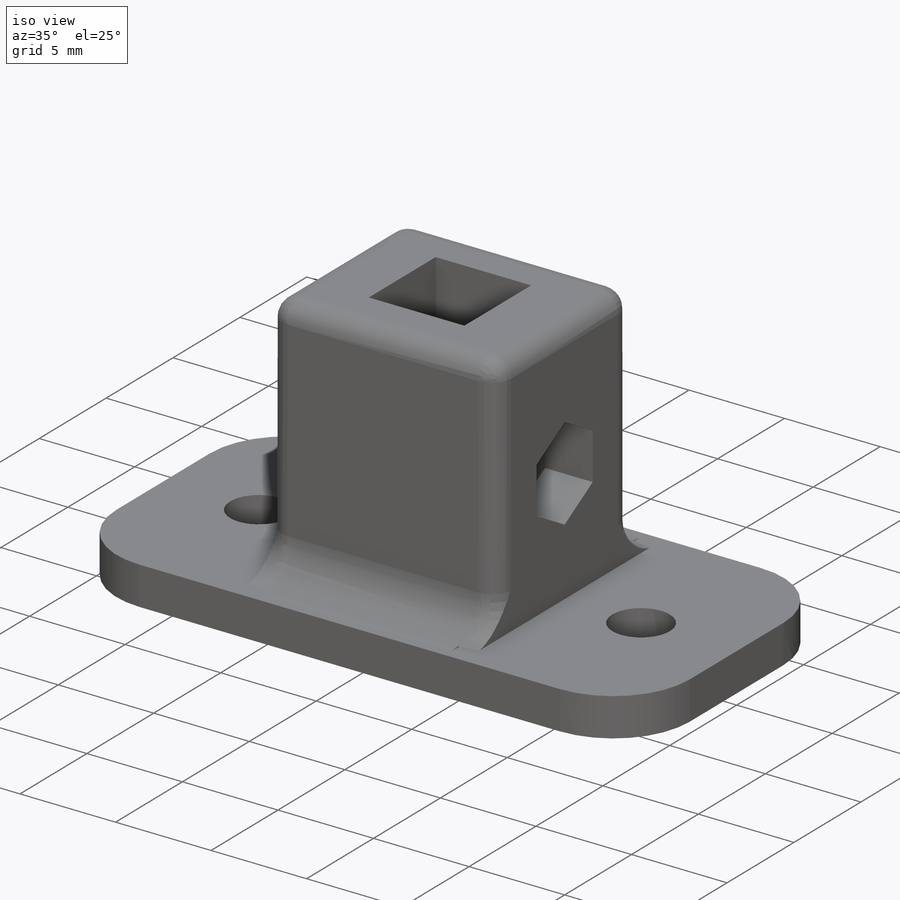
[diagram: iso view]
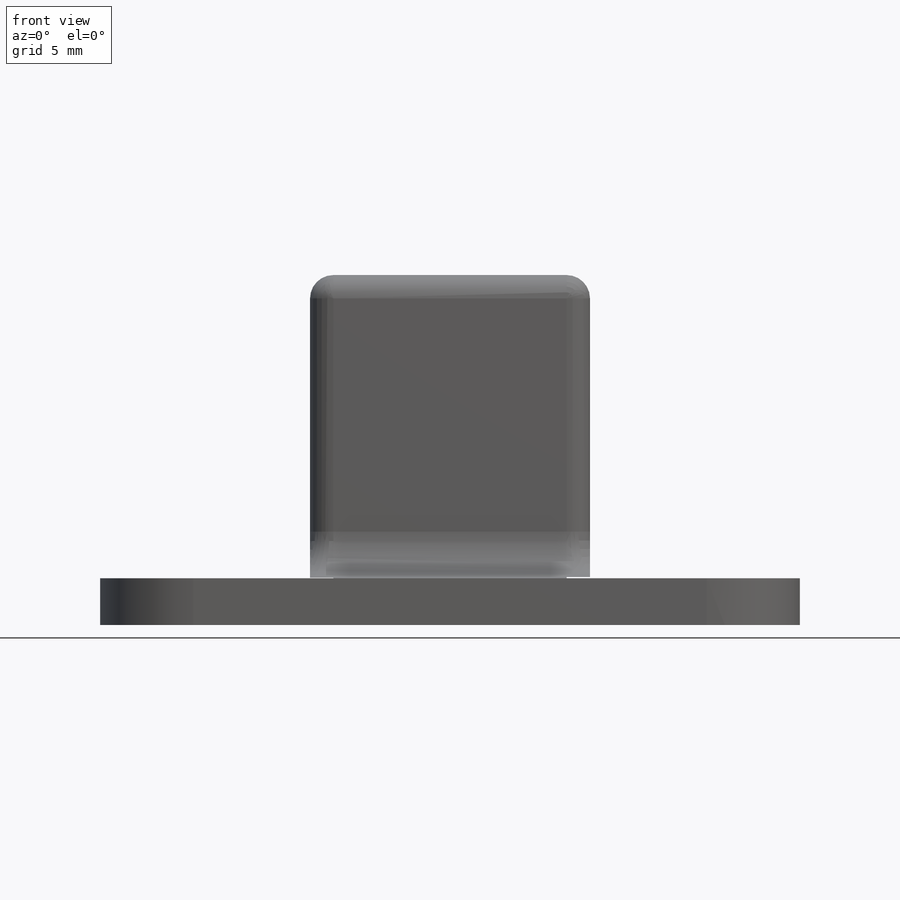
[diagram: front view]
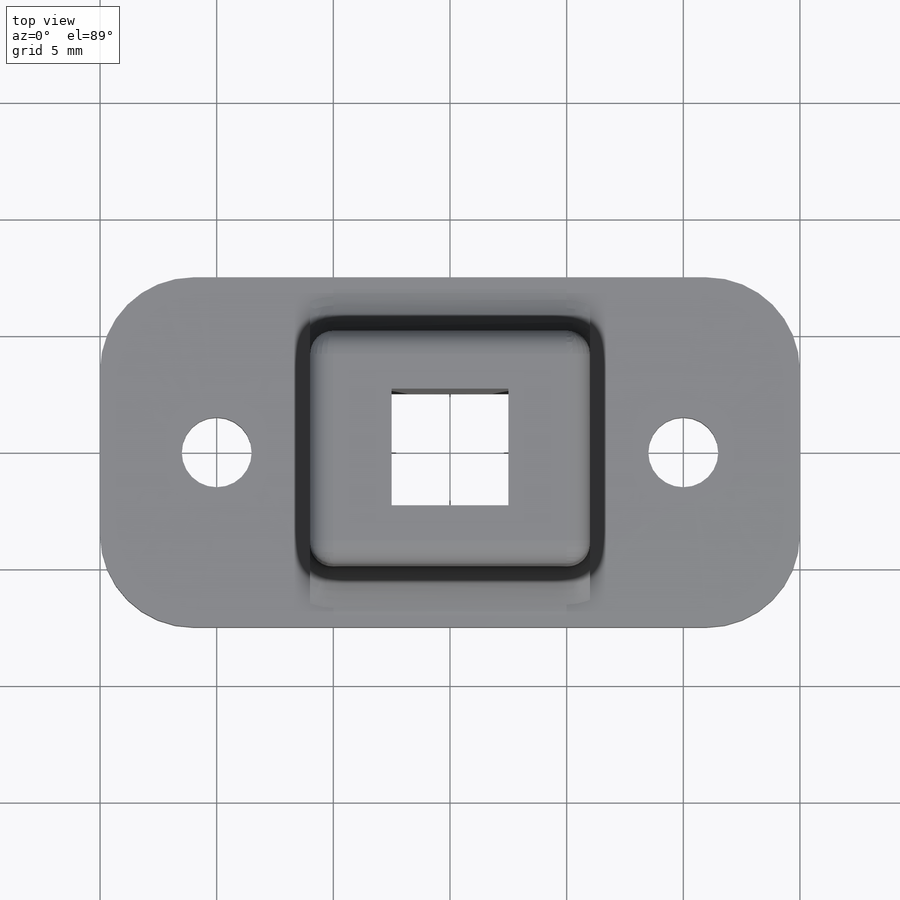
[diagram: top view]
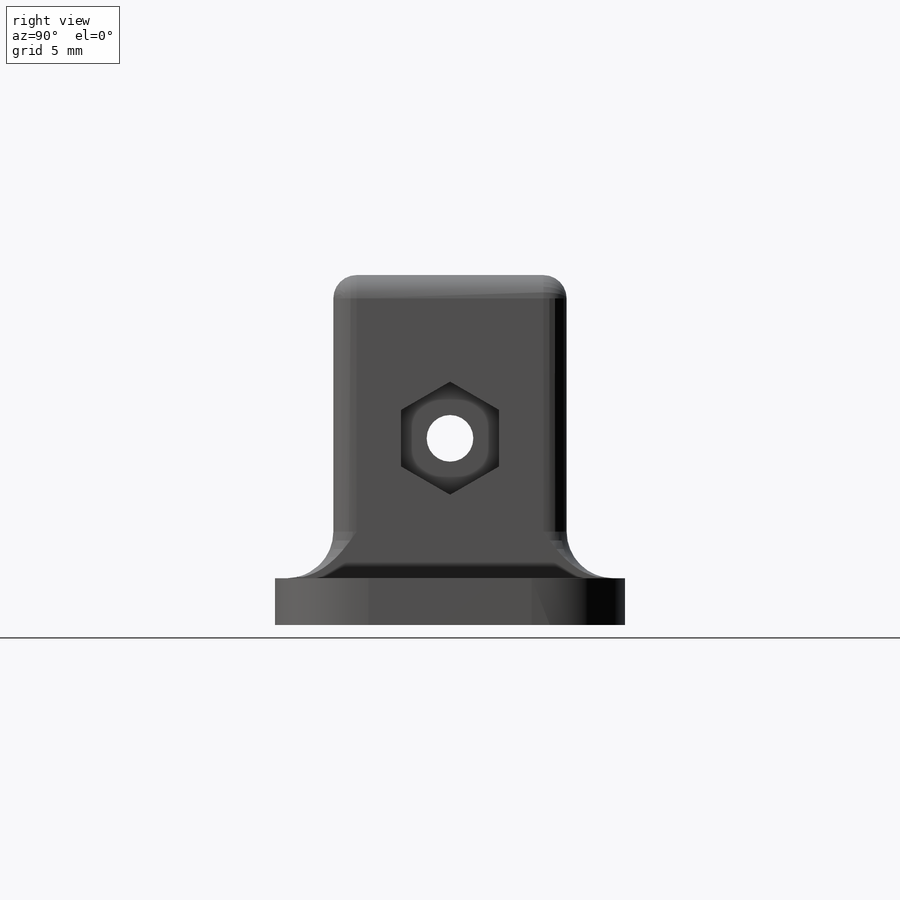
[diagram: right view]
SOLIDWORKS PART (.sldprt)
format: sldprt  version: not decoded by parser v0  size: 480,768 bytes
history: native  units: mm
features: sketch x18, cut_extrude x12, extrude x6, fillet x5, plane x3, material x1 (+9 scaffold rows collapsed)
feature tree (54):
  scaffold x9  (default folders/planes/origin — collapsed)
  material  "材质 <未指定>"
  plane  "前视基准面"
  plane  "上视基准面"
  plane  "右视基准面"
  sketch  "草图1"  dims[D3=3.0mm D6=3.0mm D1=30.0mm D2=15.0mm D4=10.0mm D5=10.0mm]
  extrude  "凸台-拉伸1"  Depth=2mm
  sketch  "草图2"  dims[D1=5.0mm D2=5.0mm]
  cut_extrude  "切除-拉伸1"  Depth=2mm
  sketch  "草图3"  dims[D1=10.0mm D2=10.0mm]
  extrude  "凸台-拉伸2"  Depth=13mm
  sketch  "草图4"
  cut_extrude  "切除-拉伸2"  Depth=13mm
  sketch  "草图5"  dims[D1=5.0mm D2=4.2mm]
  sketch  "草图9"
  extrude  "凸台-拉伸3"  Depth=1mm
  sketch  "草图10"
  extrude  "凸台-拉伸4"  Depth=1mm
  cut_extrude  "切除-拉伸7"  Depth=1mm
  sketch  "草图11"
  cut_extrude  "切除-拉伸8"  Depth=1mm
  sketch  "草图12"  dims[D1=2.0mm]
  cut_extrude  "切除-拉伸9"  Depth=2mm
  sketch  "草图13"  dims[D2=4.0mm D1=5.0mm]
  cut_extrude  "切除-拉伸10"  Depth=2mm
  sketch  "草图14"  dims[D1=2.0mm]
  cut_extrude  "切除-拉伸11"  Depth=2mm
  fillet  "圆角2"  Radius=1mm
  fillet  "圆角3"  Radius=1mm
  fillet  "圆角4"  Radius=2mm
  fillet  "圆角5"  Radius=4mm
  fillet  "圆角6"  Radius=1mm
  sketch  "草图15"
  extrude  "凸台-拉伸5"  Depth=3.5mm
  sketch  "草图16"
  extrude  "凸台-拉伸6"  Depth=3.5mm
  sketch  "草图17"  dims[D2=2.0mm D1=8.0mm]
  cut_extrude  "切除-拉伸12"  Depth=15mm
  sketch  "草图18"  dims[D1=4.2mm]
  cut_extrude  "切除-拉伸13"  Depth=2mm
  sketch  "草图19"  dims[D1=4.2mm]
  cut_extrude  "切除-拉伸14"  Depth=2mm
  sketch  "草图20"
  cut_extrude  "切除-拉伸15"  Depth=0.5mm
  sketch  "草图21"
  cut_extrude  "切除-拉伸16"  Depth=0.5mm
decode coverage: 33 of 41 modeling features carry decoded parameters
note: suppression state not decoded; provenance and decode notes live in map.json
